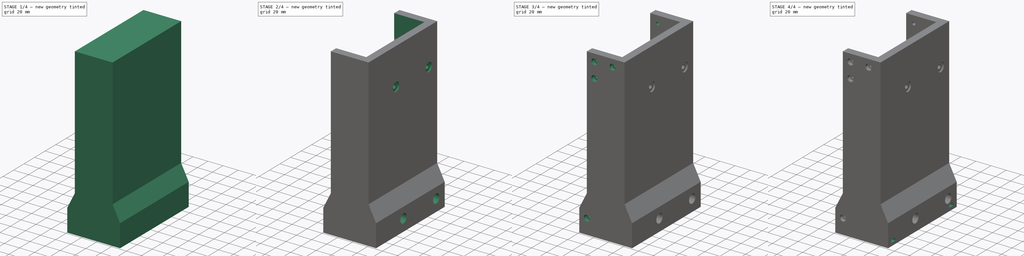
[diagram: build sequence overview — one tinted view per stage of 4, left to right]
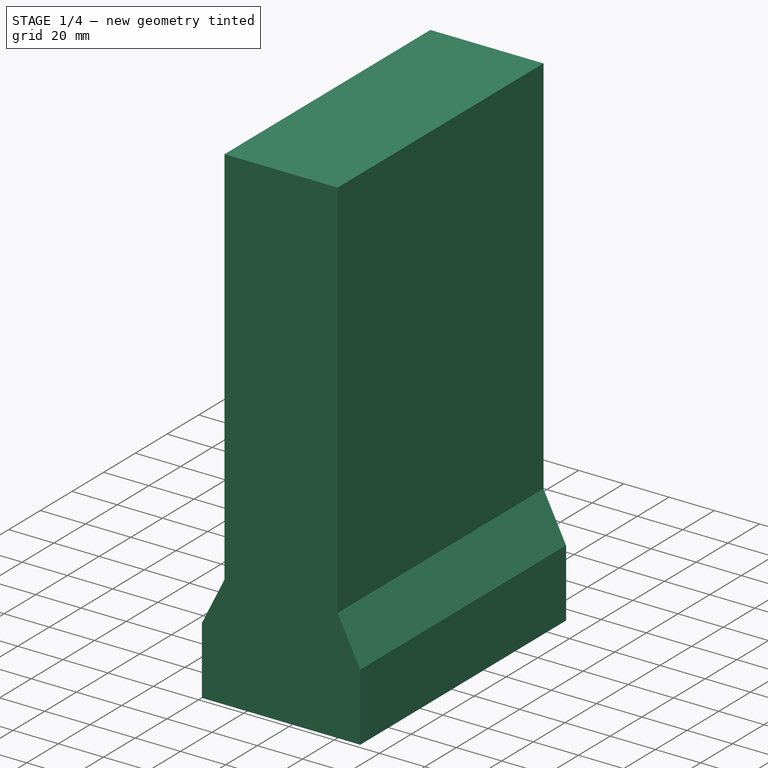
[diagram: stage 1 of 4 — iso view after this stage's code; geometry added in this stage tinted green]
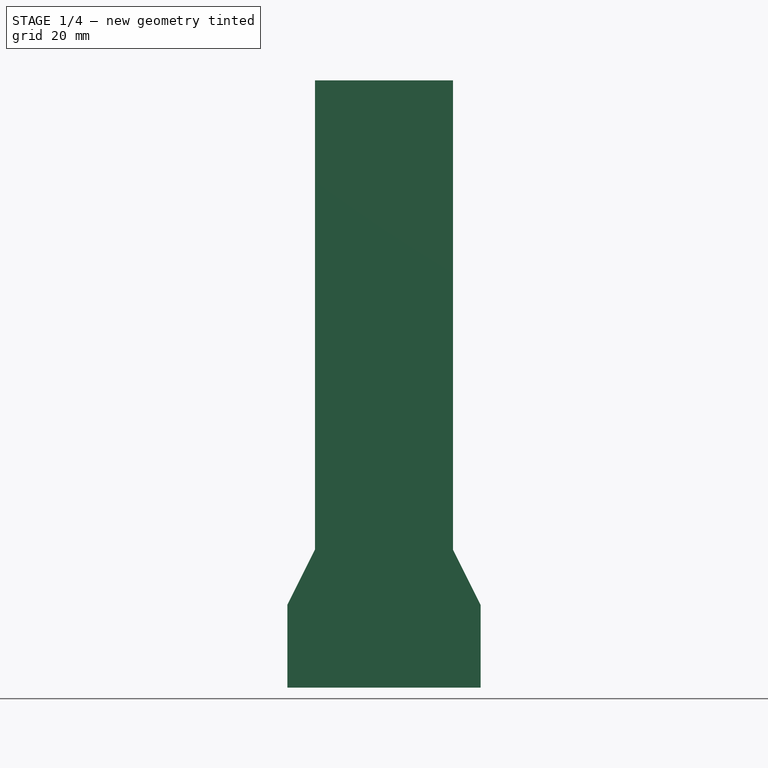
[diagram: stage 1 of 4 — front view after this stage's code; geometry added in this stage tinted green]
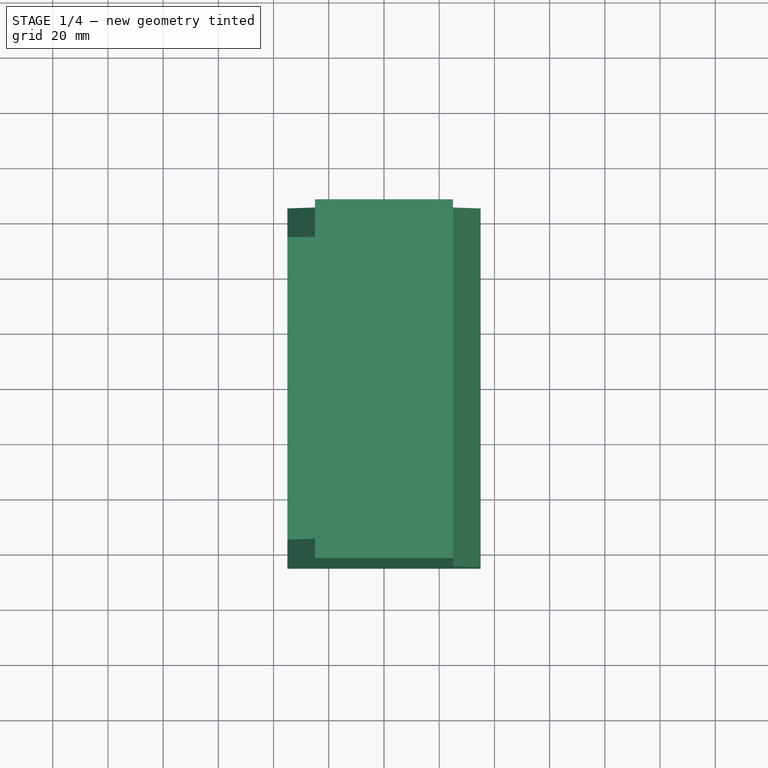
[diagram: stage 1 of 4 — top view after this stage's code; geometry added in this stage tinted green]
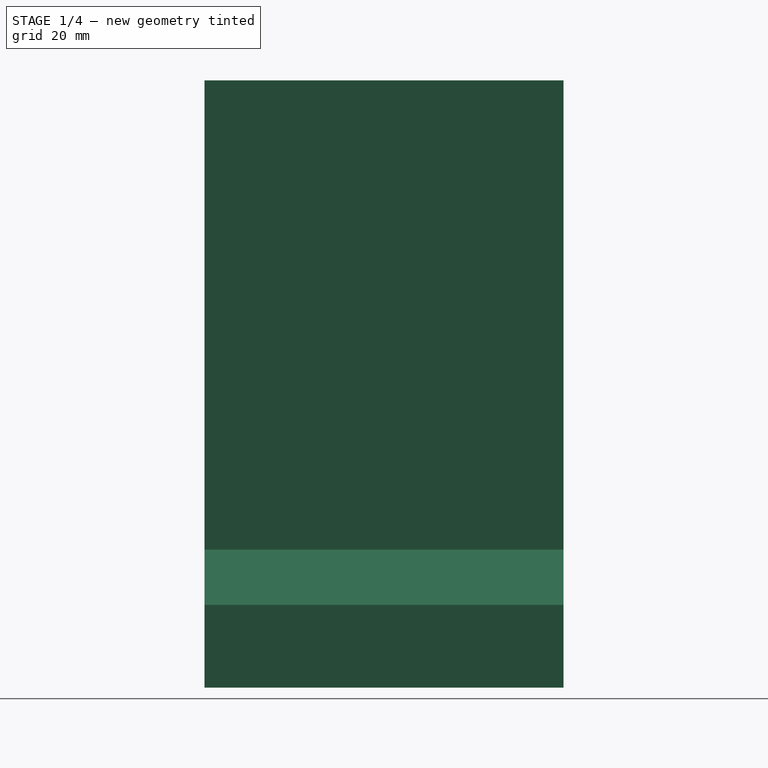
[diagram: stage 1 of 4 — right view after this stage's code; geometry added in this stage tinted green]
FCSTD DOCUMENT  (FreeCAD 2023.1231R38924 (Git))
Label: PCB_Mount
License: All rights reserved
LicenseURL: https://en.wikipedia.org/wiki/All_rights_reserved
objects: Sketcher::SketchObject×12, PartDesign::Pocket×11, PartDesign::Pad×2, PartDesign::Mirrored×1, PartDesign::Body×1
note: 67 computed .brp shape members not serialized (recipe doc carries the construction recipe); baked Part::Feature solids carry a one-line shape summary decoded from their .brp

FEATURE [Sketcher::SketchObject] Sketch
  ArcFitTolerance = 1e-06
  AttachmentSupport = -> [XY_Plane]
  ExternalBSplineMaxDegree = 5
  ExternalBSplineTolerance = 0.0001
  FullyConstrained = true
  InternalTolerance = 1e-06
  InvalidShape = false
  MakeInternals = false
  MapMode = 5
  Support = -> [XY_Plane]
  TreeRank = 11
  ValidateShape = false
  sketch-geometry (5):
    g0: LineSegment StartX=-35 StartY=-65 StartZ=0 EndX=-35 EndY=65 EndZ=0
    g1: LineSegment StartX=-35 StartY=65 StartZ=0 EndX=35 EndY=65 EndZ=0
    g2: LineSegment StartX=35 StartY=65 StartZ=0 EndX=35 EndY=-65 EndZ=0
    g3: LineSegment StartX=35 StartY=-65 StartZ=0 EndX=-35 EndY=-65 EndZ=0
    g4: GeomPoint [constr] X=0 Y=0 Z=0
  constraints (12):
    c: Coincident(g0,g1)
    c: Coincident(g1,g2)
    c: Coincident(g2,g3)
    c: Coincident(g3,g0)
    c: Horizontal(g1)
    c: Horizontal(g3)
    c: Vertical(g0)
    c: Vertical(g2)
    c: Symmetric(g1,g0,g4)
    c: Coincident(g4,g-1)
    c: DistanceX(g1,g1) = 70
    c: DistanceY(g2,g2) = 130
FEATURE [PartDesign::Pad] Pad
  AddSubType = 0
  AlongSketchNormal = false
  AutoTaperInnerAngle = true
  CheckUpToFaceLimits = true
  ClaimChildren = false
  Direction = (0,0,1)
  Fit = 0
  FitJoin = 0
  InnerFit = 0
  InnerFitJoin = 0
  InvalidShape = false
  Length = 220
  Length2 = 10
  Linearize = true
  NewSolid = false
  Profile = -> Sketch
  ReferenceAxis = -> Sketch [N_Axis]
  Suppress = false
  TaperInnerAngle = 0
  TaperInnerAngleRev = 0
  TreeRank = 12
  Type = 0
  ValidateShape = true
  _ProfileBasedVersion = 1
FEATURE [Sketcher::SketchObject] Sketch001
  ArcFitTolerance = 1e-06
  AttachmentSupport = -> [Pad]
  ExternalBSplineMaxDegree = 5
  ExternalBSplineTolerance = 0.0001
  ExternalGeometry = -> [Pad]
  FullyConstrained = true
  InternalTolerance = 1e-06
  InvalidShape = false
  MakeInternals = false
  MapMode = 5
  Placement = pos=(-35,0,0) rot=(0.57735,-0.57735,-0.57735;2.0944rad)
  Support = -> [Pad]
  TreeRank = 13
  ValidateShape = false
  sketch-geometry (5):
    g0: LineSegment StartX=-55 StartY=10 StartZ=0 EndX=-55 EndY=190 EndZ=0
    g1: LineSegment StartX=-55 StartY=190 StartZ=0 EndX=55 EndY=190 EndZ=0
    g2: LineSegment StartX=55 StartY=190 StartZ=0 EndX=55 EndY=10 EndZ=0
    g3: LineSegment StartX=55 StartY=10 StartZ=0 EndX=-55 EndY=10 EndZ=0
    g4: GeomPoint [constr] X=0 Y=100 Z=0
  constraints (13):
    c: Coincident(g0,g1)
    c: Coincident(g1,g2)
    c: Coincident(g2,g3)
    c: Coincident(g3,g0)
    c: Horizontal(g1)
    c: Horizontal(g3)
    c: Vertical(g0)
    c: Vertical(g2)
    c: Symmetric(g1,g0,g4)
    c: PointOnObject(g4,g-2)
    c: DistanceY(g2,g2) = 180
    c: DistanceX(g1,g1) = 110
    c: DistanceY(g-3,g2) = 10
FEATURE [PartDesign::Pocket] Pocket
  AddSubType = 1
  AlongSketchNormal = false
  AutoTaperInnerAngle = true
  BaseFeature = -> Pad
  CheckUpToFaceLimits = true
  ClaimChildren = false
  Direction = (1,0,0)
  Fit = 0
  FitJoin = 0
  InnerFit = 0
  InnerFitJoin = 0
  InvalidShape = false
  Length = 0
  Length2 = 10
  Linearize = true
  NewSolid = false
  Offset = -20
  Profile = -> Sketch001
  ReferenceAxis = -> Sketch001 [N_Axis]
  Suppress = false
  TaperInnerAngle = 0
  TaperInnerAngleRev = 0
  TreeRank = 14
  Type = 3
  UpToFace = -> Pad [Face3]
  ValidateShape = true
  _ProfileBasedVersion = 1
  _Version = 1
FEATURE [Sketcher::SketchObject] Sketch002
  ArcFitTolerance = 1e-06
  AttachmentSupport = -> [Pocket]
  ExternalBSplineMaxDegree = 5
  ExternalBSplineTolerance = 0.0001
  ExternalGeometry = -> [Pocket]
  FullyConstrained = true
  InternalTolerance = 1e-06
  InvalidShape = false
  MakeInternals = false
  MapMode = 5
  Placement = pos=(0,65,0) rot=(0,0.707107,0.707107;3.14159rad)
  Support = -> [Pocket]
  TreeRank = 15
  ValidateShape = false
  sketch-geometry (8):
    g0: LineSegment StartX=-35 StartY=0 StartZ=0 EndX=35 EndY=0 EndZ=0
    g1: LineSegment StartX=35 StartY=0 StartZ=0 EndX=35 EndY=30 EndZ=0
    g2: LineSegment StartX=35 StartY=30 StartZ=0 EndX=25 EndY=50 EndZ=0
    g3: LineSegment StartX=25 StartY=50 StartZ=0 EndX=25 EndY=220 EndZ=0
    g4: LineSegment StartX=25 StartY=220 StartZ=0 EndX=-25 EndY=220 EndZ=0
    g5: LineSegment StartX=-25 StartY=220 StartZ=0 EndX=-25 EndY=50 EndZ=0
    g6: LineSegment StartX=-25 StartY=50 StartZ=0 EndX=-35 EndY=30 EndZ=0
    g7: LineSegment StartX=-35 StartY=30 StartZ=0 EndX=-35 EndY=0 EndZ=0
  constraints (21):
    c: Coincident(g-3,g0)
    c: Coincident(g0,g-3)
    c: Coincident(g0,g1)
    c: Vertical(g1)
    c: Coincident(g1,g2)
    c: Coincident(g2,g3)
    c: Vertical(g3)
    c: Coincident(g3,g4)
    c: Coincident(g4,g5)
    c: Vertical(g5)
    c: Coincident(g5,g6)
    c: Coincident(g6,g7)
    c: Coincident(g7,g0)
    c: Vertical(g7)
    c: Symmetric(g4,g3,g-2)
    c: Horizontal(g4,g-4)
    c: DistanceX(g2,g1) = 10
    c: Horizontal(g2,g5)
    c: Horizontal(g6,g1)
    c: DistanceY(g1,g2) = 20
    c: DistanceY(g1,g1) = 30
FEATURE [PartDesign::Pocket] Pocket001
  AddSubType = 2
  AlongSketchNormal = false
  AutoTaperInnerAngle = true
  BaseFeature = -> Pocket
  CheckUpToFaceLimits = true
  ClaimChildren = false
  Direction = (0,-1,2e-16)
  Fit = 0
  FitJoin = 0
  InnerFit = 0
  InnerFitJoin = 0
  InvalidShape = false
  Length = 5
  Length2 = 10
  Linearize = true
  NewSolid = false
  Profile = -> Sketch002
  ReferenceAxis = -> Sketch002 [N_Axis]
  Suppress = false
  TaperInnerAngle = 0
  TaperInnerAngleRev = 0
  TreeRank = 16
  Type = 1
  ValidateShape = true
  _ProfileBasedVersion = 1
  _Version = 1
FEATURE [Sketcher::SketchObject] Sketch003
  ArcFitTolerance = 1e-06
  AttachmentSupport = -> [Pocket001]
  ExternalBSplineMaxDegree = 5
  ExternalBSplineTolerance = 0.0001
  ExternalGeometry = -> [Pocket001]
  FullyConstrained = true
  InternalTolerance = 1e-06
  InvalidShape = false
  MakeInternals = false
  MapMode = 5
  Placement = pos=(15,0,0) rot=(0.57735,-0.57735,-0.57735;2.0944rad)
  Support = -> [Pocket001]
  TreeRank = 17
  ValidateShape = false
  sketch-geometry (8):
    g0: LineSegment [constr] StartX=-49 StartY=171 StartZ=0 EndX=13 EndY=171 EndZ=0
    g1: LineSegment [constr] StartX=13 StartY=171 StartZ=0 EndX=13 EndY=16 EndZ=0
    g2: LineSegment [constr] StartX=13 StartY=16 StartZ=0 EndX=-49 EndY=16 EndZ=0
    g3: LineSegment [constr] StartX=-49 StartY=16 StartZ=0 EndX=-49 EndY=171 EndZ=0
    g4: Circle CenterX=-49 CenterY=171 CenterZ=0 NormalX=0 NormalY=0 NormalZ=1 AngleXU=0 Radius=6
    g5: Circle CenterX=13 CenterY=171 CenterZ=0 NormalX=0 NormalY=0 NormalZ=1 AngleXU=0 Radius=6
    g6: Circle CenterX=13 CenterY=16 CenterZ=0 NormalX=0 NormalY=0 NormalZ=1 AngleXU=0 Radius=6
    g7: Circle CenterX=-49 CenterY=16 CenterZ=0 NormalX=0 NormalY=0 NormalZ=1 AngleXU=0 Radius=6
  constraints (20):
    c: Coincident(g0,g1)
    c: Coincident(g1,g2)
    c: Coincident(g2,g3)
    c: Coincident(g3,g0)
    c: Horizontal(g0)
    c: Horizontal(g2)
    c: Vertical(g1)
    c: Vertical(g3)
    c: DistanceY(g1,g1) = 155
    c: DistanceX(g0,g0) = 62
    c: Coincident(g4,g0)
    c: Coincident(g5,g0)
    c: Coincident(g6,g1)
    c: Coincident(g7,g2)
    c: Equal(g4,g5)
    c: Equal(g5,g6)
    c: Equal(g6,g7)
    c: Diameter(g7) = 12
    c: Tangent(g-4,g7)
    c: Tangent(g7,g-3)
FEATURE [PartDesign::Pad] Pad001
  AddSubType = 0
  AlongSketchNormal = false
  AutoTaperInnerAngle = true
  BaseFeature = -> Pocket001
  CheckUpToFaceLimits = true
  ClaimChildren = false
  Direction = (-1,0,0)
  Fit = 0
  FitJoin = 0
  InnerFit = 0
  InnerFitJoin = 0
  InvalidShape = false
  Length = 4
  Length2 = 10
  Linearize = true
  NewSolid = false
  Profile = -> Sketch003
  ReferenceAxis = -> Sketch003 [N_Axis]
  Suppress = false
  TaperInnerAngle = 0
  TaperInnerAngleRev = 0
  TreeRank = 18
  Type = 0
  ValidateShape = true
  _ProfileBasedVersion = 1
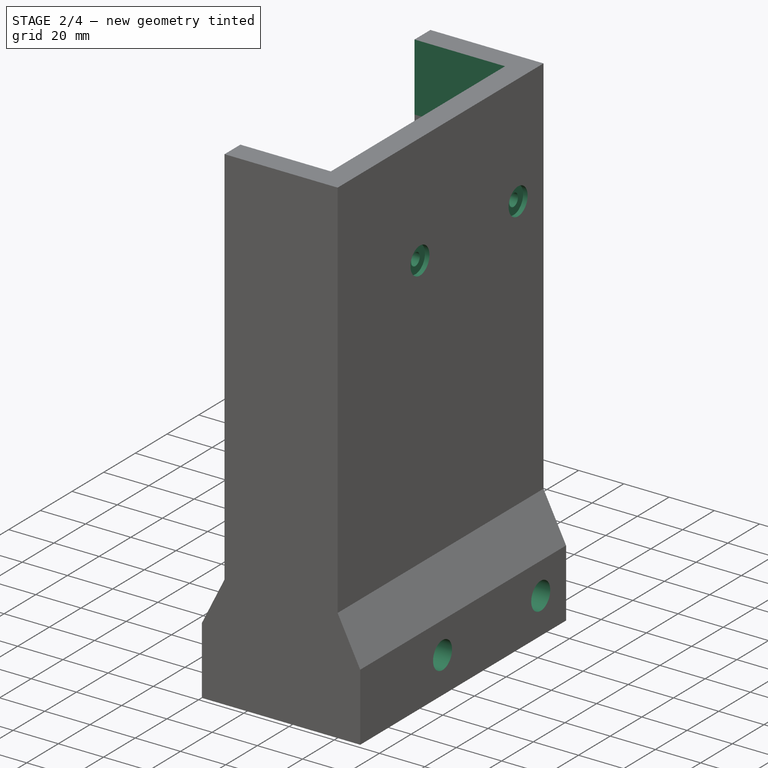
[diagram: stage 2 of 4 — iso view after this stage's code; geometry added in this stage tinted green]
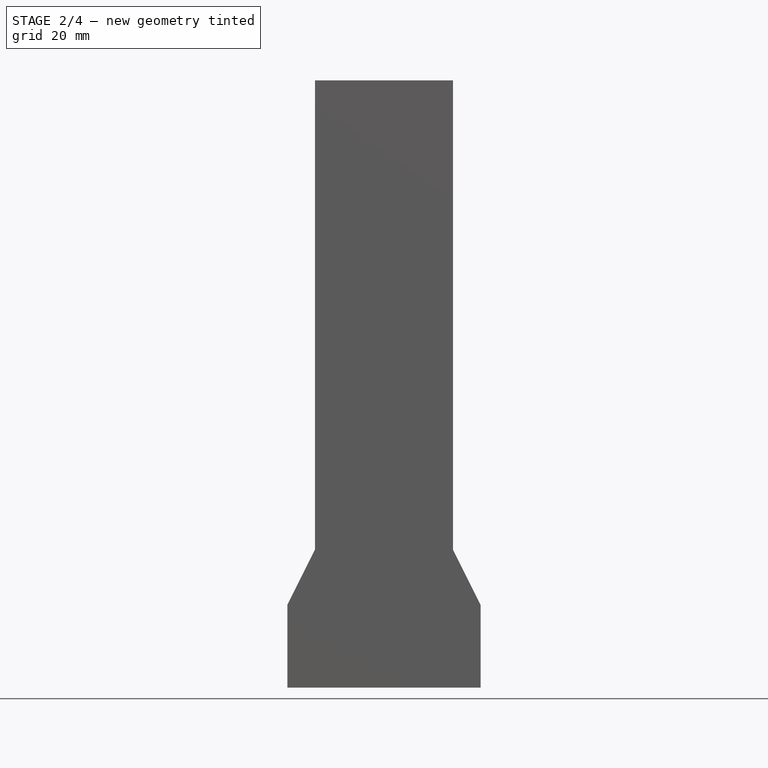
[diagram: stage 2 of 4 — front view after this stage's code; geometry added in this stage tinted green]
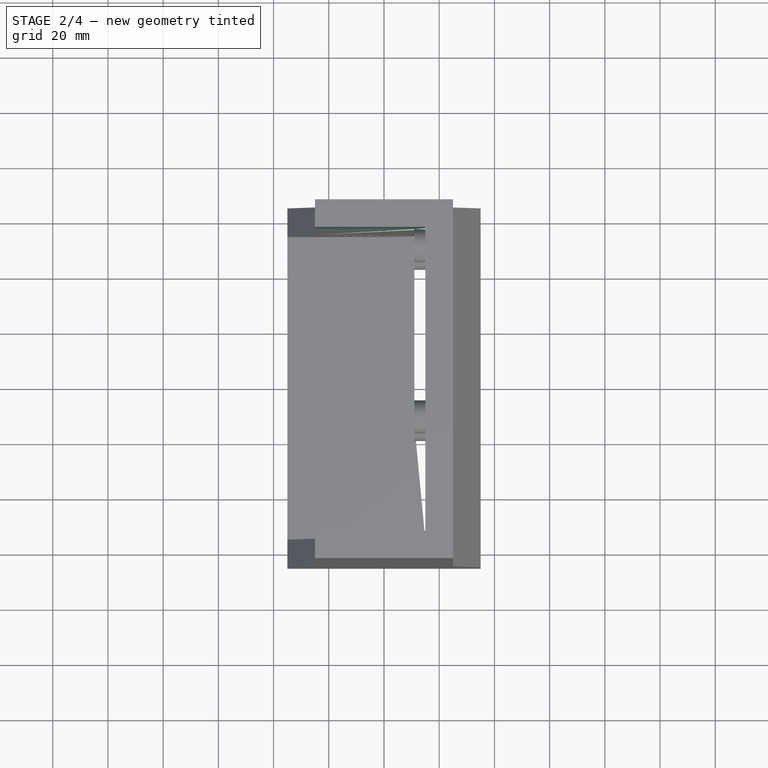
[diagram: stage 2 of 4 — top view after this stage's code; geometry added in this stage tinted green]
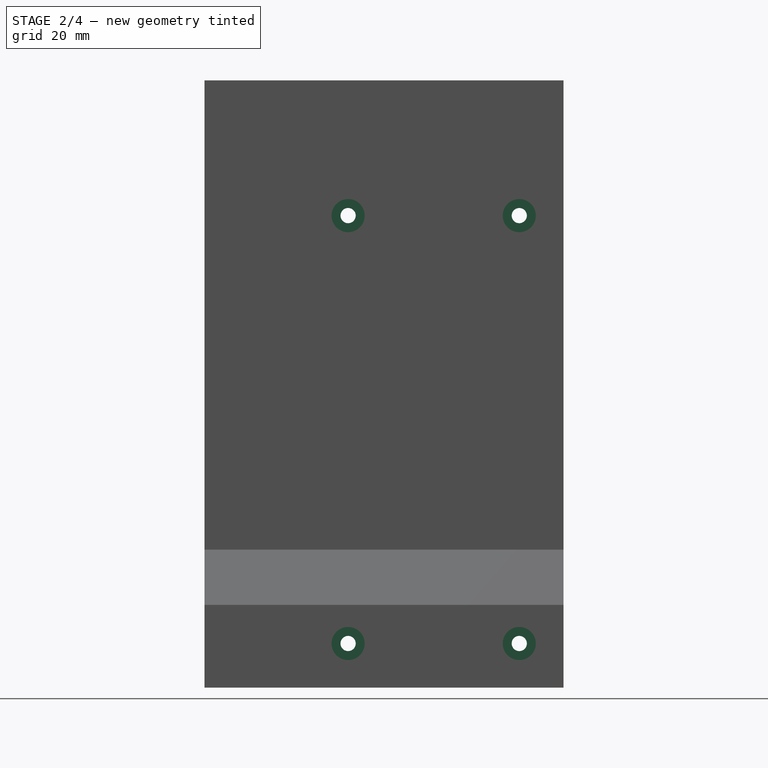
[diagram: stage 2 of 4 — right view after this stage's code; geometry added in this stage tinted green]
FEATURE [Sketcher::SketchObject] Sketch004
  ArcFitTolerance = 1e-06
  AttachmentSupport = -> [Pad001]
  ExternalBSplineMaxDegree = 5
  ExternalBSplineTolerance = 0.0001
  ExternalGeometry = -> [Pad001]
  FullyConstrained = true
  InternalTolerance = 1e-06
  InvalidShape = false
  MakeInternals = false
  MapMode = 5
  Placement = pos=(11,0,0) rot=(0.57735,-0.57735,-0.57735;2.0944rad)
  Support = -> [Pad001]
  TreeRank = 19
  ValidateShape = false
  sketch-geometry (4):
    g0: Circle CenterX=-49 CenterY=171 CenterZ=0 NormalX=0 NormalY=0 NormalZ=1 AngleXU=0 Radius=2.75
    g1: Circle CenterX=13 CenterY=171 CenterZ=0 NormalX=0 NormalY=0 NormalZ=1 AngleXU=0 Radius=2.75
    g2: Circle CenterX=13 CenterY=16 CenterZ=0 NormalX=0 NormalY=0 NormalZ=1 AngleXU=0 Radius=2.75
    g3: Circle CenterX=-49 CenterY=16 CenterZ=0 NormalX=0 NormalY=0 NormalZ=1 AngleXU=0 Radius=2.75
  constraints (8):
    c: Coincident(g0,g-3)
    c: Coincident(g1,g-4)
    c: Coincident(g2,g-5)
    c: Coincident(g3,g-6)
    c: Equal(g0,g3)
    c: Equal(g3,g2)
    c: Equal(g2,g1)
    c: Diameter(g0) = 5.5
FEATURE [PartDesign::Pocket] Pocket002
  AddSubType = 1
  AlongSketchNormal = false
  AutoTaperInnerAngle = true
  BaseFeature = -> Pad001
  CheckUpToFaceLimits = true
  ClaimChildren = false
  Direction = (1,0,0)
  Fit = 0
  FitJoin = 0
  InnerFit = 0
  InnerFitJoin = 0
  InvalidShape = false
  Length = 5
  Length2 = 10
  Linearize = true
  NewSolid = false
  Profile = -> Sketch004
  ReferenceAxis = -> Sketch004 [N_Axis]
  Suppress = false
  TaperInnerAngle = 0
  TaperInnerAngleRev = 0
  TreeRank = 20
  Type = 1
  ValidateShape = true
  _ProfileBasedVersion = 1
  _Version = 1
FEATURE [Sketcher::SketchObject] Sketch005
  ArcFitTolerance = 1e-06
  AttachmentOffset = pos=(0,0,-12) rot=(0,0,1;0rad)
  AttachmentSupport = -> [Pad001]
  ExternalBSplineMaxDegree = 5
  ExternalBSplineTolerance = 0.0001
  ExternalGeometry = -> [Pad001]
  FullyConstrained = true
  InternalTolerance = 1e-06
  InvalidShape = false
  MakeInternals = false
  MapMode = 5
  Placement = pos=(23,0,0) rot=(0.57735,-0.57735,-0.57735;2.0944rad)
  Support = -> [Pad001]
  TreeRank = 21
  ValidateShape = false
  sketch-geometry (4):
    g0: Circle CenterX=-49 CenterY=171 CenterZ=0 NormalX=0 NormalY=0 NormalZ=1 AngleXU=0 Radius=6
    g1: Circle CenterX=13 CenterY=171 CenterZ=0 NormalX=0 NormalY=0 NormalZ=1 AngleXU=0 Radius=6
    g2: Circle CenterX=13 CenterY=16 CenterZ=0 NormalX=0 NormalY=0 NormalZ=1 AngleXU=0 Radius=6
    g3: Circle CenterX=-49 CenterY=16 CenterZ=0 NormalX=0 NormalY=0 NormalZ=1 AngleXU=0 Radius=6
  constraints (8):
    c: Coincident(g0,g-3)
    c: Coincident(g1,g-4)
    c: Coincident(g2,g-5)
    c: Coincident(g3,g-6)
    c: Equal(g0,g3)
    c: Equal(g3,g2)
    c: Equal(g2,g1)
    c: Diameter(g0) = 12
FEATURE [PartDesign::Pocket] Pocket003
  AddSubType = 1
  AlongSketchNormal = false
  AutoTaperInnerAngle = true
  BaseFeature = -> Pocket002
  CheckUpToFaceLimits = true
  ClaimChildren = false
  Direction = (1,0,0)
  Fit = 0
  FitJoin = 0
  InnerFit = 0
  InnerFitJoin = 0
  InvalidShape = false
  Length = 5
  Length2 = 10
  Linearize = true
  NewSolid = false
  Profile = -> Sketch005
  ReferenceAxis = -> Sketch005 [N_Axis]
  Suppress = false
  TaperInnerAngle = 0
  TaperInnerAngleRev = 0
  TreeRank = 22
  Type = 1
  ValidateShape = true
  _ProfileBasedVersion = 1
  _Version = 1
FEATURE [PartDesign::Pocket] Pocket004
  AddSubType = 1
  AlongSketchNormal = false
  AutoTaperInnerAngle = true
  BaseFeature = -> Pocket003
  CheckUpToFaceLimits = true
  ClaimChildren = false
  Direction = (0,0,1)
  Fit = 0
  FitJoin = 0
  InnerFit = 0
  InnerFitJoin = 0
  InvalidShape = false
  Length = 5
  Length2 = 10
  Linearize = true
  NewSolid = false
  Profile = -> Pocket003 [Face17]
  Suppress = false
  TaperInnerAngle = 0
  TaperInnerAngleRev = 0
  TreeRank = 23
  Type = 1
  ValidateShape = true
  _ProfileBasedVersion = 1
  _Version = 1
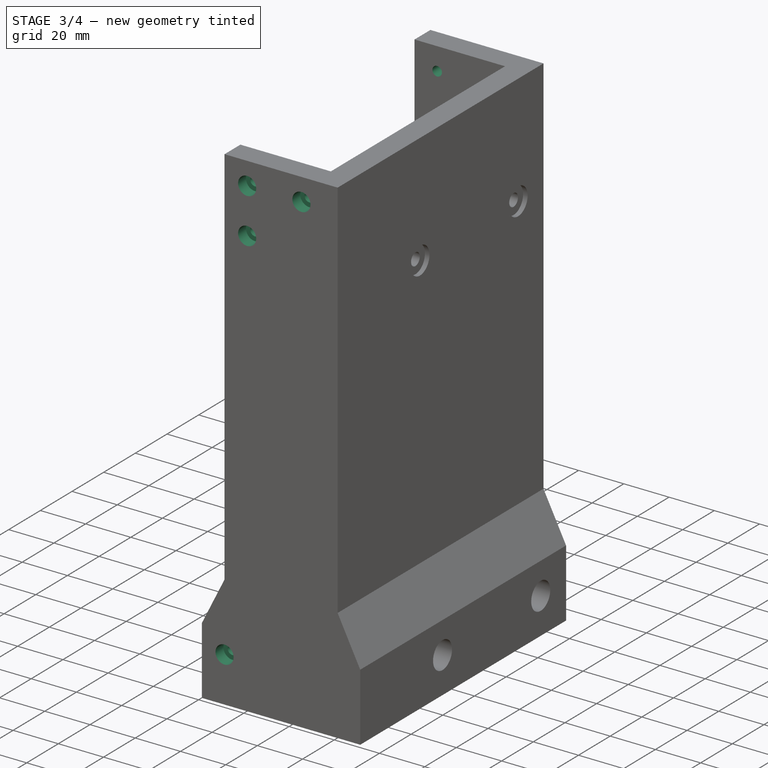
[diagram: stage 3 of 4 — iso view after this stage's code; geometry added in this stage tinted green]
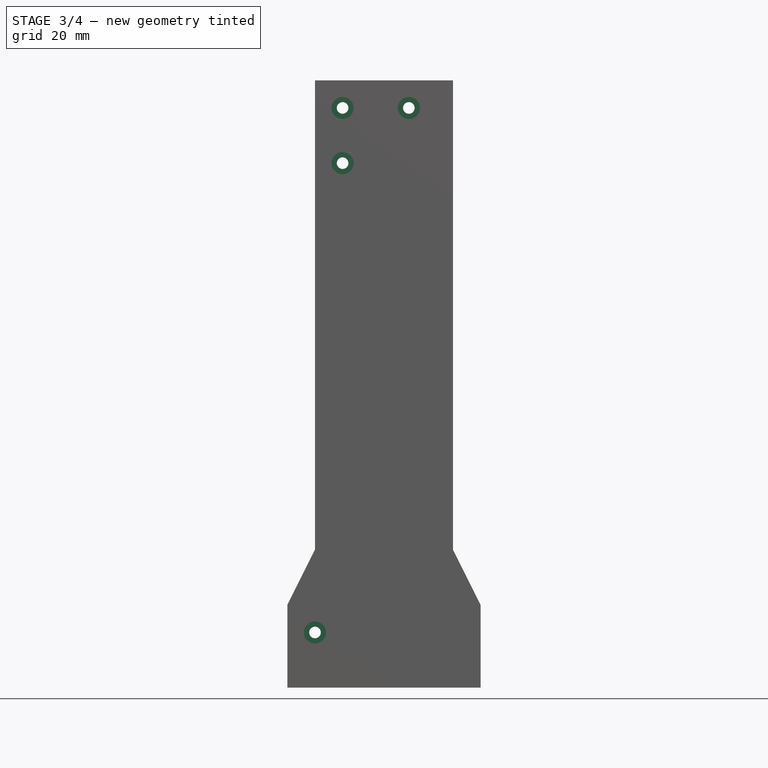
[diagram: stage 3 of 4 — front view after this stage's code; geometry added in this stage tinted green]
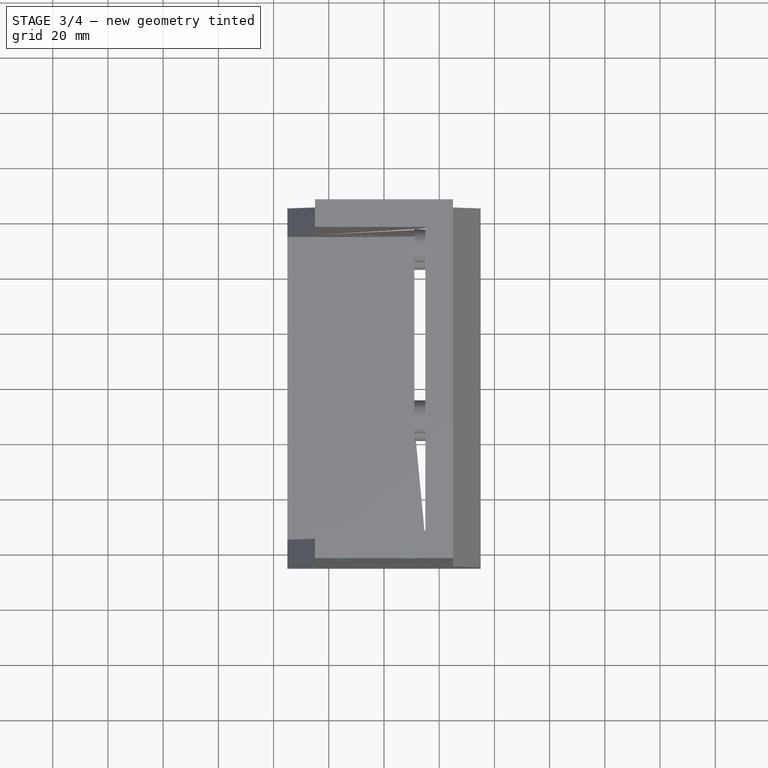
[diagram: stage 3 of 4 — top view after this stage's code; geometry added in this stage tinted green]
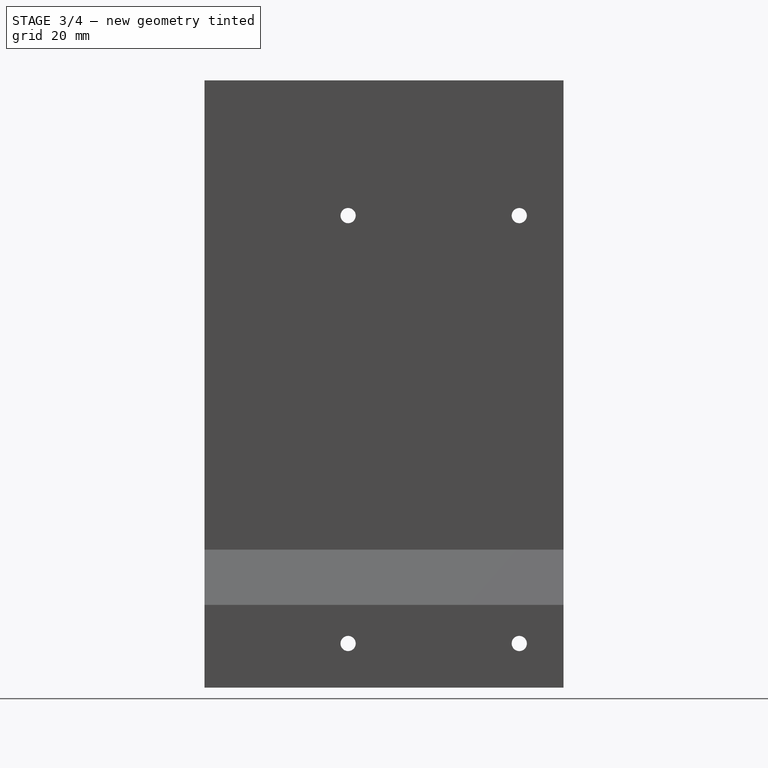
[diagram: stage 3 of 4 — right view after this stage's code; geometry added in this stage tinted green]
FEATURE [Sketcher::SketchObject] Sketch006
  ArcFitTolerance = 1e-06
  AttachmentSupport = -> [Pocket004]
  ExternalBSplineMaxDegree = 5
  ExternalBSplineTolerance = 0.0001
  ExternalGeometry = -> [Pocket004]
  FullyConstrained = true
  InternalTolerance = 1e-06
  InvalidShape = false
  MakeInternals = false
  MapMode = 5
  Placement = pos=(0,65,0) rot=(0,0.707107,0.707107;3.14159rad)
  Support = -> [Pocket004]
  TreeRank = 24
  ValidateShape = false
  sketch-geometry (4):
    g0: Circle CenterX=15 CenterY=210 CenterZ=0 NormalX=0 NormalY=0 NormalZ=1 AngleXU=0 Radius=2.1
    g1: Circle CenterX=25 CenterY=20 CenterZ=0 NormalX=0 NormalY=0 NormalZ=1 AngleXU=0 Radius=2.1
    g2: Circle CenterX=15 CenterY=190 CenterZ=0 NormalX=0 NormalY=0 NormalZ=1 AngleXU=0 Radius=2.1
    g3: Circle CenterX=-9 CenterY=210 CenterZ=0 NormalX=0 NormalY=0 NormalZ=1 AngleXU=0 Radius=2.1
  constraints (12):
    c: DistanceX(g1,g-4) = 10
    c: DistanceX(g0,g-3) = 10
    c: DistanceY(g0,g-3) = 10
    c: DistanceY(g-4,g1) = 20
    c: Vertical(g2,g0)
    c: DistanceY(g2,g0) = 20
    c: Equal(g0,g2)
    c: Equal(g2,g1)
    c: Diameter(g1) = 4.2
    c: Horizontal(g3,g0)
    c: Equal(g3,g0)
    c: DistanceX(g-5,g3) = 6
FEATURE [PartDesign::Pocket] Pocket005
  AddSubType = 1
  AlongSketchNormal = false
  AutoTaperInnerAngle = true
  BaseFeature = -> Pocket004
  CheckUpToFaceLimits = true
  ClaimChildren = false
  Direction = (0,-1,2e-16)
  Fit = 0
  FitJoin = 0
  InnerFit = 0
  InnerFitJoin = 0
  InvalidShape = false
  Length = 5
  Length2 = 10
  Linearize = true
  NewSolid = false
  Profile = -> Sketch006
  ReferenceAxis = -> Sketch006 [N_Axis]
  Suppress = false
  TaperInnerAngle = 0
  TaperInnerAngleRev = 0
  TreeRank = 25
  Type = 1
  ValidateShape = true
  _ProfileBasedVersion = 1
  _Version = 1
FEATURE [Sketcher::SketchObject] Sketch007
  ArcFitTolerance = 1e-06
  AttachmentSupport = -> [Pocket004]
  ExternalBSplineMaxDegree = 5
  ExternalBSplineTolerance = 0.0001
  ExternalGeometry = -> [Pocket004]
  FullyConstrained = true
  InternalTolerance = 1e-06
  InvalidShape = false
  MakeInternals = false
  MapMode = 5
  Placement = pos=(0,65,0) rot=(0,0.707107,0.707107;3.14159rad)
  Support = -> [Pocket004]
  TreeRank = 26
  ValidateShape = false
  sketch-geometry (4):
    g0: Circle CenterX=15 CenterY=210 CenterZ=0 NormalX=0 NormalY=0 NormalZ=1 AngleXU=0 Radius=4
    g1: Circle CenterX=25 CenterY=20 CenterZ=0 NormalX=0 NormalY=0 NormalZ=1 AngleXU=0 Radius=4
    g2: Circle CenterX=15 CenterY=190 CenterZ=0 NormalX=0 NormalY=0 NormalZ=1 AngleXU=0 Radius=4
    g3: Circle CenterX=-9 CenterY=210 CenterZ=0 NormalX=0 NormalY=0 NormalZ=1 AngleXU=0 Radius=4
  constraints (12):
    c: DistanceX(g1,g-4) = 10
    c: DistanceX(g0,g-3) = 10
    c: DistanceY(g0,g-3) = 10
    c: DistanceY(g-4,g1) = 20
    c: Vertical(g2,g0)
    c: DistanceY(g2,g0) = 20
    c: Equal(g0,g2)
    c: Equal(g2,g1)
    c: Diameter(g1) = 8
    c: Horizontal(g3,g0)
    c: Equal(g3,g0)
    c: DistanceX(g-5,g3) = 6
FEATURE [PartDesign::Pocket] Pocket006
  AddSubType = 1
  AlongSketchNormal = false
  AutoTaperInnerAngle = true
  BaseFeature = -> Pocket005
  CheckUpToFaceLimits = true
  ClaimChildren = false
  Direction = (0,-1,2e-16)
  Fit = 0
  FitJoin = 0
  InnerFit = 0
  InnerFitJoin = 0
  InvalidShape = false
  Length = 5
  Length2 = 10
  Linearize = true
  NewSolid = false
  Profile = -> Sketch007
  ReferenceAxis = -> Sketch007 [N_Axis]
  Suppress = false
  TaperInnerAngle = 0
  TaperInnerAngleRev = 0
  TreeRank = 27
  Type = 0
  ValidateShape = true
  _ProfileBasedVersion = 1
  _Version = 1
FEATURE [Sketcher::SketchObject] Sketch008
  ArcFitTolerance = 1e-06
  AttachmentOffset = pos=(0,0,-130) rot=(0,0,1;0rad)
  AttachmentSupport = -> [Pocket004]
  ExternalBSplineMaxDegree = 5
  ExternalBSplineTolerance = 0.0001
  ExternalGeometry = -> [Pocket004]
  FullyConstrained = true
  InternalTolerance = 1e-06
  InvalidShape = false
  MakeInternals = false
  MapMode = 5
  Placement = pos=(0,-65,2.89e-14) rot=(0,0.707107,0.707107;3.14159rad)
  Support = -> [Pocket004]
  TreeRank = 28
  ValidateShape = false
  sketch-geometry (4):
    g0: Circle CenterX=15 CenterY=210 CenterZ=0 NormalX=0 NormalY=0 NormalZ=1 AngleXU=0 Radius=4
    g1: Circle CenterX=25 CenterY=20 CenterZ=0 NormalX=0 NormalY=0 NormalZ=1 AngleXU=0 Radius=4
    g2: Circle CenterX=15 CenterY=190 CenterZ=0 NormalX=0 NormalY=0 NormalZ=1 AngleXU=0 Radius=4
    g3: Circle CenterX=-9 CenterY=210 CenterZ=0 NormalX=0 NormalY=0 NormalZ=1 AngleXU=0 Radius=4
  constraints (12):
    c: DistanceX(g1,g-4) = 10
    c: DistanceX(g0,g-3) = 10
    c: DistanceY(g0,g-3) = 10
    c: DistanceY(g-4,g1) = 20
    c: Vertical(g2,g0)
    c: DistanceY(g2,g0) = 20
    c: Equal(g0,g2)
    c: Equal(g2,g1)
    c: Diameter(g1) = 8
    c: Horizontal(g3,g0)
    c: Equal(g3,g0)
    c: DistanceX(g-5,g3) = 6
FEATURE [PartDesign::Pocket] Pocket007
  AddSubType = 1
  AlongSketchNormal = false
  AutoTaperInnerAngle = true
  BaseFeature = -> Pocket006
  CheckUpToFaceLimits = true
  ClaimChildren = false
  Direction = (0,-1,2e-16)
  Fit = 0
  FitJoin = 0
  InnerFit = 0
  InnerFitJoin = 0
  InvalidShape = false
  Length = 5
  Length2 = 10
  Linearize = true
  NewSolid = false
  Profile = -> Sketch008
  ReferenceAxis = -> Sketch008 [N_Axis]
  Reversed = true
  Suppress = false
  TaperInnerAngle = 0
  TaperInnerAngleRev = 0
  TreeRank = 29
  Type = 0
  ValidateShape = true
  _ProfileBasedVersion = 1
  _Version = 1
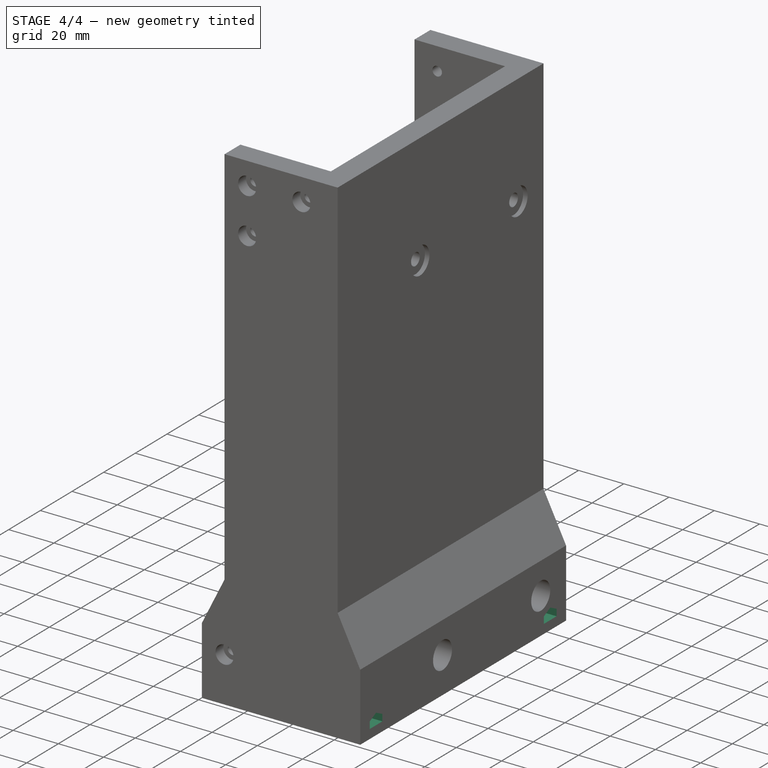
[diagram: stage 4 of 4 — iso view after this stage's code; geometry added in this stage tinted green]
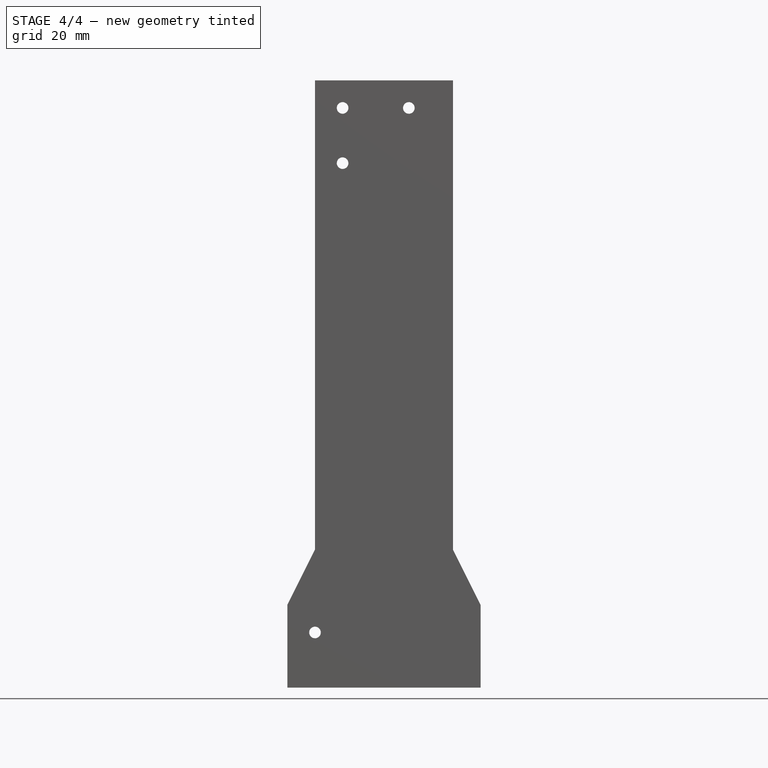
[diagram: stage 4 of 4 — front view after this stage's code; geometry added in this stage tinted green]
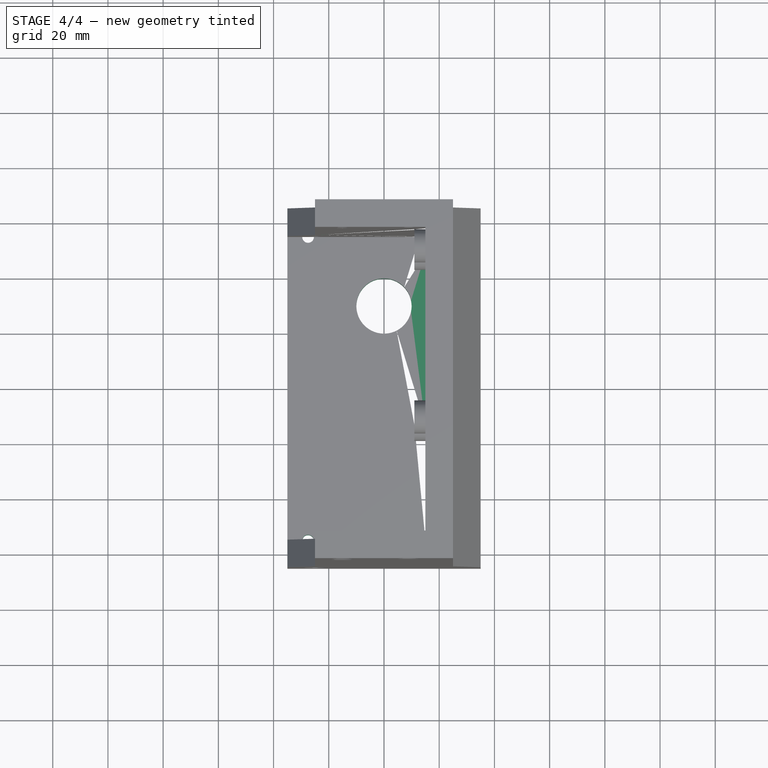
[diagram: stage 4 of 4 — top view after this stage's code; geometry added in this stage tinted green]
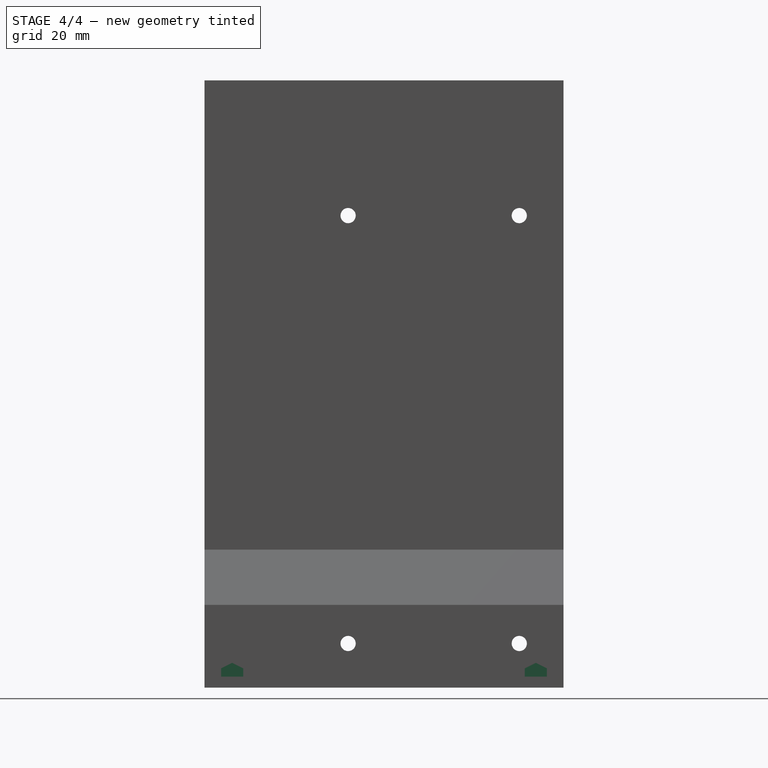
[diagram: stage 4 of 4 — right view after this stage's code; geometry added in this stage tinted green]
FEATURE [Sketcher::SketchObject] Sketch009
  ArcFitTolerance = 1e-06
  AttachmentSupport = -> [Pocket007]
  ExternalBSplineMaxDegree = 5
  ExternalBSplineTolerance = 0.0001
  ExternalGeometry = -> [Pocket007]
  FullyConstrained = true
  InternalTolerance = 1e-06
  InvalidShape = false
  MakeInternals = false
  MapMode = 5
  Placement = pos=(0,0,0) rot=(1,0,0;3.14159rad)
  Support = -> [Pocket007]
  TreeRank = 30
  ValidateShape = false
  sketch-geometry (9):
    g0: LineSegment [constr] StartX=27.5 StartY=-55 StartZ=0 EndX=27.5 EndY=55 EndZ=0
    g1: LineSegment [constr] StartX=27.5 StartY=55 StartZ=0 EndX=-27.5 EndY=55 EndZ=0
    g2: LineSegment [constr] StartX=-27.5 StartY=55 StartZ=0 EndX=-27.5 EndY=-55 EndZ=0
    g3: LineSegment [constr] StartX=-27.5 StartY=-55 StartZ=0 EndX=27.5 EndY=-55 EndZ=0
    g4: GeomPoint [constr] X=0 Y=0 Z=0
    g5: Circle CenterX=-27.5 CenterY=55 CenterZ=0 NormalX=0 NormalY=0 NormalZ=1 AngleXU=0 Radius=2.1
    g6: Circle CenterX=27.5 CenterY=55 CenterZ=0 NormalX=0 NormalY=0 NormalZ=1 AngleXU=0 Radius=2.1
    g7: Circle CenterX=27.5 CenterY=-55 CenterZ=0 NormalX=0 NormalY=0 NormalZ=1 AngleXU=0 Radius=2.1
    g8: Circle CenterX=-27.5 CenterY=-55 CenterZ=0 NormalX=0 NormalY=0 NormalZ=1 AngleXU=0 Radius=2.1
  constraints (21):
    c: Coincident(g0,g1)
    c: Coincident(g1,g2)
    c: Coincident(g2,g3)
    c: Coincident(g3,g0)
    c: Horizontal(g1)
    c: Horizontal(g3)
    c: Vertical(g0)
    c: Vertical(g2)
    c: Symmetric(g1,g0,g4)
    c: DistanceX(g1,g1) = 55
    c: Coincident(g4,g-1)
    c: Coincident(g5,g1)
    c: Coincident(g6,g0)
    c: Coincident(g7,g0)
    c: Coincident(g8,g2)
    c: Equal(g5,g6)
    c: Equal(g6,g7)
    c: Equal(g7,g8)
    c: Diameter(g8) = 4.2
    c: DistanceY(g5,g-4) = 10
    c: DistanceY(g2,g2) = 110
FEATURE [PartDesign::Pocket] Pocket008
  AddSubType = 1
  AlongSketchNormal = false
  AutoTaperInnerAngle = true
  BaseFeature = -> Pocket007
  CheckUpToFaceLimits = true
  ClaimChildren = false
  Direction = (0,0,1)
  Fit = 0
  FitJoin = 0
  InnerFit = 0
  InnerFitJoin = 0
  InvalidShape = false
  Length = 10
  Length2 = 10
  Linearize = true
  NewSolid = false
  Profile = -> Sketch009
  ReferenceAxis = -> Sketch009 [N_Axis]
  Suppress = false
  TaperInnerAngle = 0
  TaperInnerAngleRev = 0
  TreeRank = 31
  Type = 0
  ValidateShape = true
  _ProfileBasedVersion = 1
  _Version = 1
FEATURE [Sketcher::SketchObject] Sketch010
  ArcFitTolerance = 1e-06
  AttachmentSupport = -> [Pocket008]
  ExternalBSplineMaxDegree = 5
  ExternalBSplineTolerance = 0.0001
  ExternalGeometry = -> [Pocket008]
  FullyConstrained = true
  InternalTolerance = 1e-06
  InvalidShape = false
  MakeInternals = false
  MapMode = 5
  Placement = pos=(-35,0,0) rot=(0.57735,-0.57735,-0.57735;2.0944rad)
  Support = -> [Pocket008]
  TreeRank = 32
  ValidateShape = false
  sketch-geometry (14):
    g0: LineSegment StartX=-59 StartY=7 StartZ=0 EndX=-59 EndY=4 EndZ=0
    g1: LineSegment StartX=-59 StartY=4 StartZ=0 EndX=-51 EndY=4 EndZ=0
    g2: LineSegment StartX=-51 StartY=4 StartZ=0 EndX=-51 EndY=7 EndZ=0
    g3: GeomPoint [constr] X=-55 Y=5.5 Z=0
    g4: LineSegment StartX=51 StartY=7 StartZ=0 EndX=51 EndY=4 EndZ=0
    g5: LineSegment StartX=51 StartY=4 StartZ=0 EndX=59 EndY=4 EndZ=0
    g6: LineSegment StartX=59 StartY=4 StartZ=0 EndX=59 EndY=7 EndZ=0
    g7: GeomPoint [constr] X=55 Y=5.5 Z=0
    g8: GeomPoint [constr] X=-55 Y=0 Z=0
    g9: GeomPoint [constr] X=55 Y=0 Z=0
    g10: LineSegment StartX=-59 StartY=7 StartZ=0 EndX=-55 EndY=9 EndZ=0
    g11: LineSegment StartX=-55 StartY=9 StartZ=0 EndX=-51 EndY=7 EndZ=0
    g12: LineSegment StartX=51 StartY=7 StartZ=0 EndX=55 EndY=9 EndZ=0
    g13: LineSegment StartX=59 StartY=7 StartZ=0 EndX=55 EndY=9 EndZ=0
  constraints (34):
    c: Coincident(g0,g1)
    c: Coincident(g1,g2)
    c: Horizontal(g1)
    c: Vertical(g0)
    c: Vertical(g2)
    c: Symmetric(g1,g0,g3)
    c: Coincident(g4,g5)
    c: Coincident(g5,g6)
    c: Horizontal(g5)
    c: Vertical(g4)
    c: Vertical(g6)
    c: Symmetric(g5,g4,g7)
    c: Symmetric(g-5,g-5,g9)
    c: Symmetric(g-4,g-4,g8)
    c: Vertical(g8,g3)
    c: Equal(g1,g5)
    c: Equal(g4,g2)
    c: Horizontal(g1,g4)
    c: DistanceX(g1,g1) = 8
    c: DistanceY(g2,g2) = 3
    c: DistanceY(g-3,g1) = 4
    c: Vertical(g7,g9)
    c: Coincident(g10,g0)
    c: Coincident(g11,g10)
    c: Coincident(g11,g2)
    c: Vertical(g10,g8)
    c: DistanceY(g2,g10) = 2
    c: Horizontal(g0,g2)
    c: Coincident(g12,g4)
    c: Coincident(g13,g12)
    c: Coincident(g13,g6)
    c: Horizontal(g6,g4)
    c: Vertical(g12,g9)
    c: Horizontal(g12,g10)
FEATURE [PartDesign::Pocket] Pocket009
  AddSubType = 1
  AlongSketchNormal = false
  AutoTaperInnerAngle = true
  BaseFeature = -> Pocket008
  CheckUpToFaceLimits = true
  ClaimChildren = false
  Direction = (1,0,0)
  Fit = 0
  FitJoin = 0
  InnerFit = 0
  InnerFitJoin = 0
  InvalidShape = false
  Length = 15
  Length2 = 10
  Linearize = true
  NewSolid = false
  Profile = -> Sketch010
  ReferenceAxis = -> Sketch010 [N_Axis]
  Suppress = false
  TaperInnerAngle = 0
  TaperInnerAngleRev = 0
  TreeRank = 33
  Type = 0
  ValidateShape = true
  _ProfileBasedVersion = 1
  _Version = 1
FEATURE [PartDesign::Mirrored] Mirrored
  AddSubType = 0
  BaseFeature = -> Pocket009
  CopyShape = false
  InvalidShape = false
  MirrorPlane = -> YZ_Plane
  NewSolid = false
  OriginalSubs = -> [Pocket009]
  Originals = -> [Pocket009]
  ParallelTransform = true
  SubTransform = true
  Suppress = false
  TreeRank = 34
  ValidateShape = true
  _Version = 3
FEATURE [Sketcher::SketchObject] Sketch011
  ArcFitTolerance = 1e-06
  AttachmentSupport = -> [Mirrored]
  ExternalBSplineMaxDegree = 5
  ExternalBSplineTolerance = 0.0001
  FullyConstrained = true
  InternalTolerance = 1e-06
  InvalidShape = false
  MakeInternals = false
  MapMode = 5
  Placement = pos=(0,0,10) rot=(0,0,1;0rad)
  Support = -> [Mirrored]
  TreeRank = 35
  ValidateShape = false
  sketch-geometry (1):
    g0: Circle CenterX=0 CenterY=30 CenterZ=0 NormalX=0 NormalY=0 NormalZ=1 AngleXU=0 Radius=10
  constraints (3):
    c: PointOnObject(g0,g-2)
    c: Diameter(g0) = 20
    c: DistanceY(g-1,g0) = 30
FEATURE [PartDesign::Pocket] Pocket010
  AddSubType = 1
  AlongSketchNormal = false
  AutoTaperInnerAngle = true
  BaseFeature = -> Mirrored
  CheckUpToFaceLimits = true
  ClaimChildren = false
  Direction = (0,0,-1)
  Fit = 0
  FitJoin = 0
  InnerFit = 0
  InnerFitJoin = 0
  InvalidShape = false
  Length = 5
  Length2 = 10
  Linearize = true
  NewSolid = false
  Profile = -> Sketch011
  ReferenceAxis = -> Sketch011 [N_Axis]
  Suppress = false
  TaperInnerAngle = 0
  TaperInnerAngleRev = 0
  TreeRank = 36
  Type = 1
  ValidateShape = true
  _ProfileBasedVersion = 1
  _Version = 1
FEATURE [PartDesign::Body] Body
  AutoGroupSolids = false
  ClaimAllChildren = false
  ExportMode = 0
  Group = -> [Sketch,Pad,Sketch001,Pocket,Sketch002,Pocket001,Sketch003,Pad001,Sketch004,Pocket002,Sketch005,Pocket003,Pocket004,Sketch006,Pocket005,Sketch007,Pocket006,Sketch008,Pocket007,Sketch009,Pocket008,Sketch010,Pocket009,Mirrored,Sketch011,Pocket010]
  InvalidShape = false
  Origin = -> Origin
  Tip = -> Pocket010
  TreeRank = 10
  ValidateShape = false
  _ExportChildren = -> [Pad,Pocket,Pocket001,Pad001,Pocket002,Pocket003,Pocket004,Pocket005,Pocket006,Pocket007,Pocket008,Pocket009,Mirrored,Pocket010]
  _GroupVersion = 1
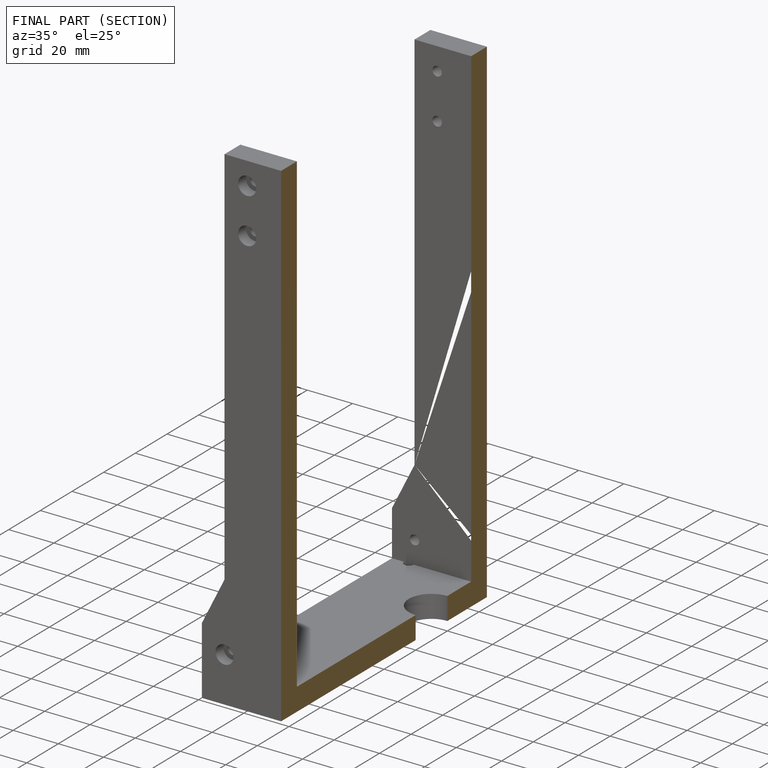
[diagram: finished part — half-section view (interior)]
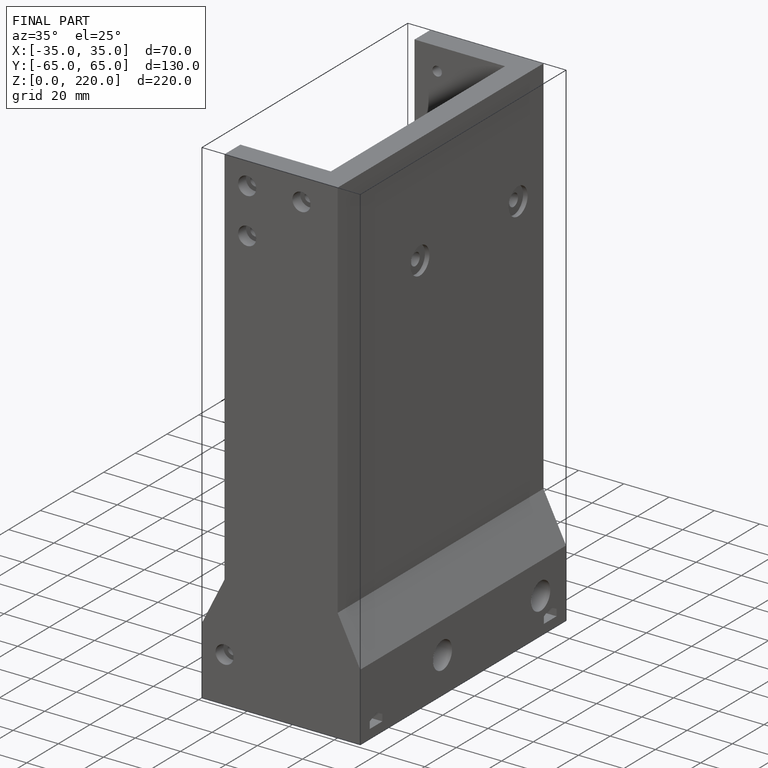
[diagram: finished part — iso view with bounding-box wireframe]
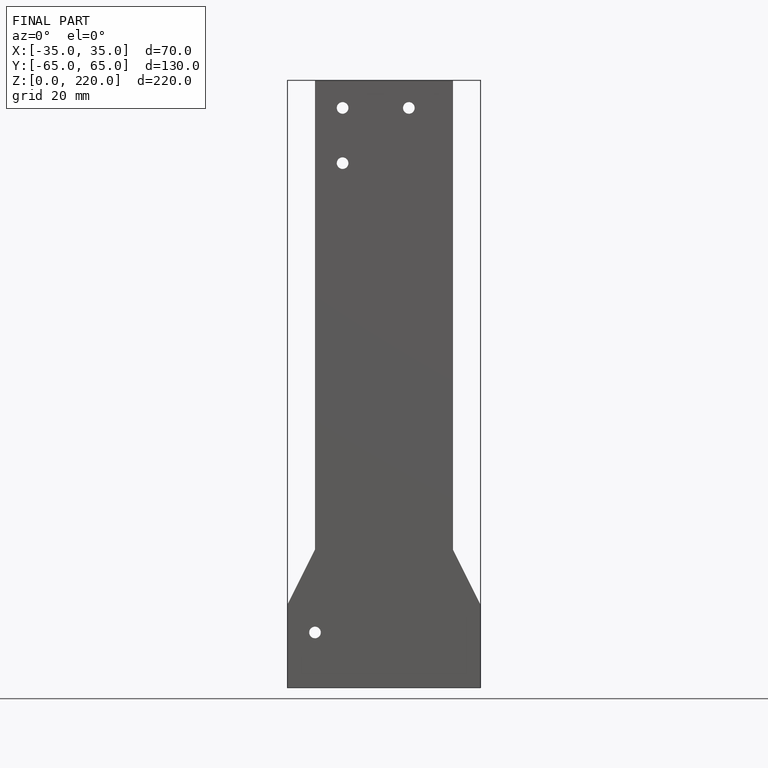
[diagram: finished part — front view with bounding-box wireframe]
